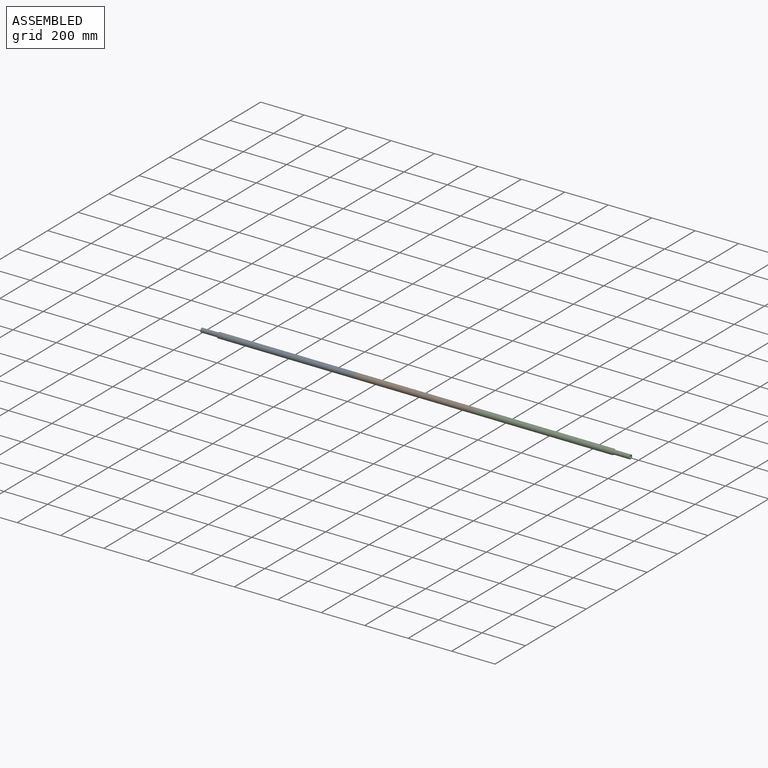
[diagram: assembled view]
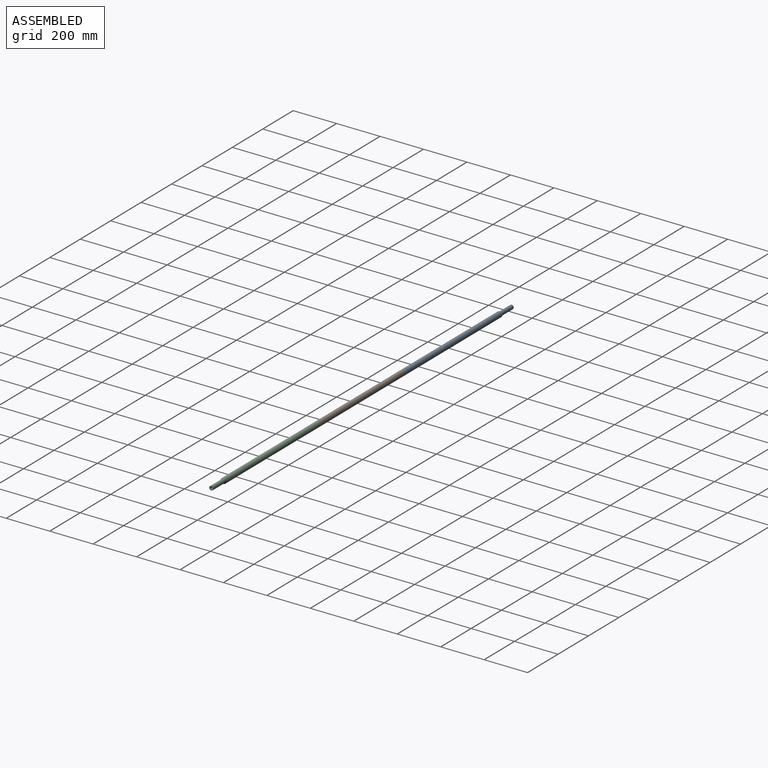
[diagram: assembled view, second angle]
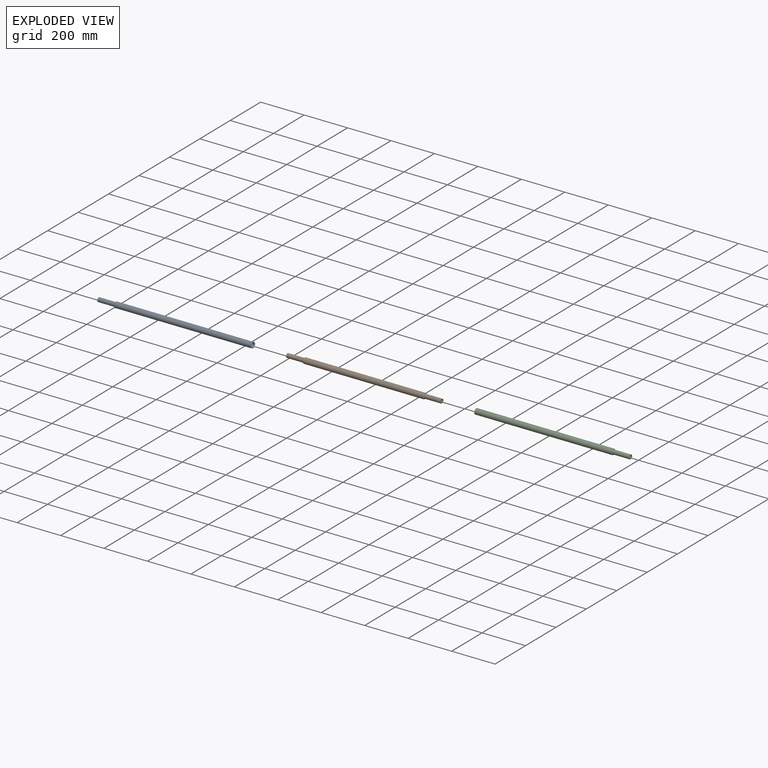
[diagram: exploded view]
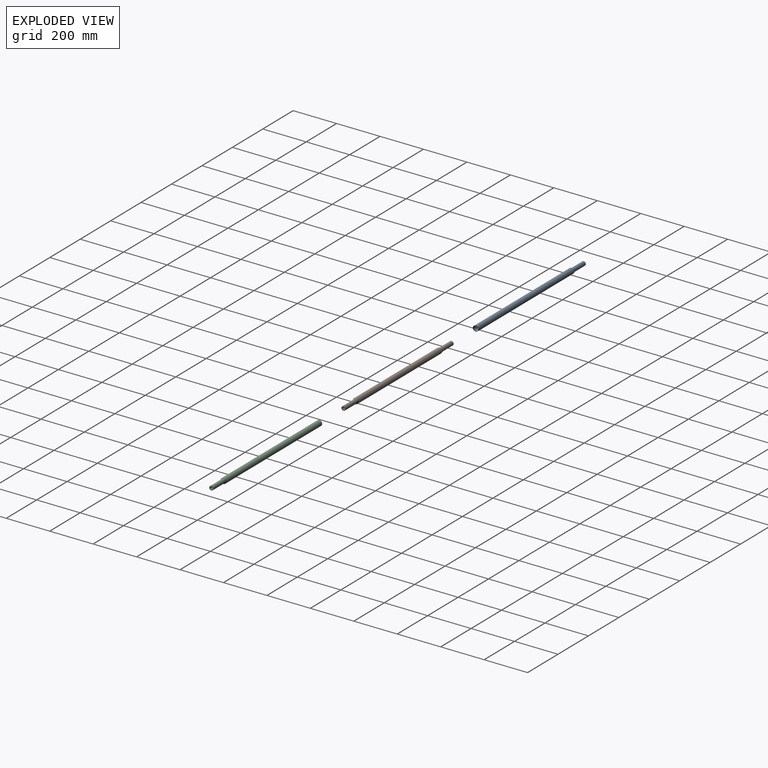
[diagram: exploded view, second angle]
ASSEMBLY  parts=3 mates=2
PART A: 8 faces, bbox 25.4x711.2x25.4 mm
  f0: cylinder r=9.53mm len=76.2mm, axis (0,-1,0), area 4560.4mm2, adj f1,f7
  f1: cone r=9.53mm half-angle=45deg, axis (0,1,0), area 313.5mm2, adj f0,f2
  f2: cylinder r=12.7mm len=631.83mm, axis (0,-1,0), area 50417.4mm2, adj f1,f3
  f3: cone r=9.53mm half-angle=45deg, axis (0,1,0), area 313.5mm2, adj f2,f4
  f4: cylinder r=9.53mm len=628.65mm, axis (0,-1,0), area 37623mm2, adj f3,f5
  f5: cone r=9.53mm half-angle=45deg, axis (0,1,0), area 223.9mm2, adj f4,f6
  f6: cylinder r=6.35mm len=76.2mm, axis (0,-1,0), area 3040.2mm2, adj f5,f7
  f7: plane 19.05x19.05mm, normal (0,-1,0), area 158.3mm2, adj f0,f6
PART B: 12 faces, bbox 25.4x711.2x25.4 mm
  f0: plane 19.05x19.05mm, normal (0,1,0), area 158.3mm2, adj f1,f11
  f1: cylinder r=6.35mm len=76.2mm, axis (0,-1,0), area 3040.2mm2, adj f0,f2
  f2: cone r=9.53mm half-angle=45deg, axis (0,-1,0), area 223.9mm2, adj f1,f3
  f3: cylinder r=9.53mm len=552.45mm, axis (0,-1,0), area 33062.7mm2, adj f2,f4
  f4: cone r=9.53mm half-angle=45deg, axis (0,1,0), area 223.9mm2, adj f3,f5
  f5: cylinder r=6.35mm len=76.2mm, axis (0,-1,0), area 3040.2mm2, adj f4,f6
  f6: plane 19.05x19.05mm, normal (0,-1,0), area 158.3mm2, adj f5,f7
  f7: cylinder r=9.53mm len=76.2mm, axis (0,-1,0), area 4560.4mm2, adj f6,f8
  f8: cone r=9.53mm half-angle=45deg, axis (0,1,0), area 313.5mm2, adj f7,f9
  f9: cylinder r=12.7mm len=552.45mm, axis (0,-1,0), area 44083.6mm2, adj f8,f10
  f10: cone r=9.53mm half-angle=45deg, axis (0,-1,0), area 313.5mm2, adj f9,f11
  f11: cylinder r=9.53mm len=76.2mm, axis (0,-1,0), area 4560.4mm2, adj f0,f10
PART C: same geometry as A
PLACE A rot(axis=(0.19,0.19,-0.96),92.2deg) t=(-1607.69,-465.56,-5.87)mm
PLACE B rot(axis=(0.19,-0.19,0.96),92.2deg) t=(-975.87,-465.56,-5.87)mm
PLACE C rot(axis=(0.64,-0.64,0.43),133.7deg) t=(-344.04,-462.12,2.42)mm
MATE revolute B.f1 <-> C.f0  axis (1,0,0) through (-699.64,-467.98,0)mm
MATE revolute A.f0 <-> B.f1  axis (-1,0,0) through (-1252.09,-467.98,0)mm
